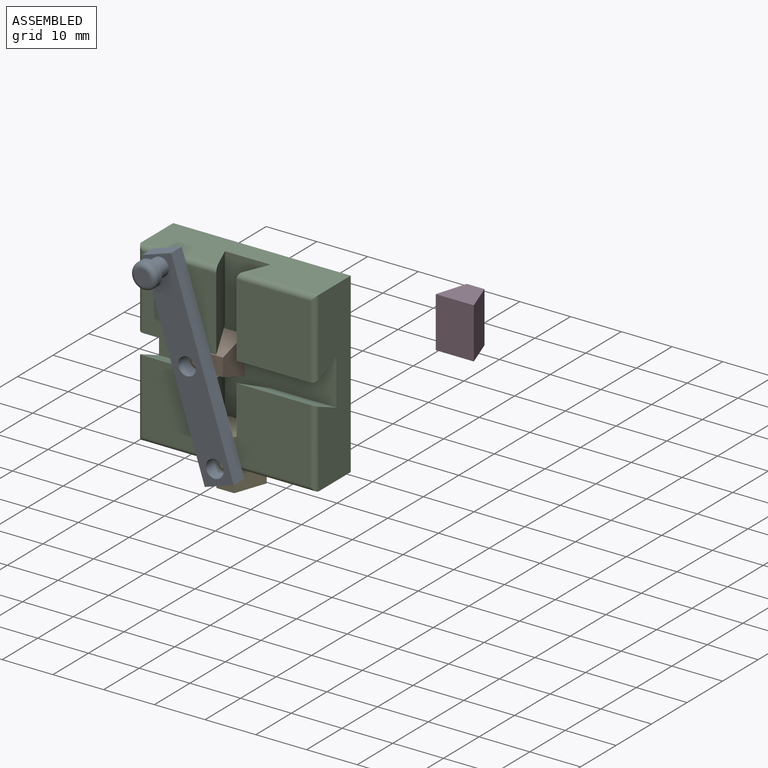
[diagram: assembled view]
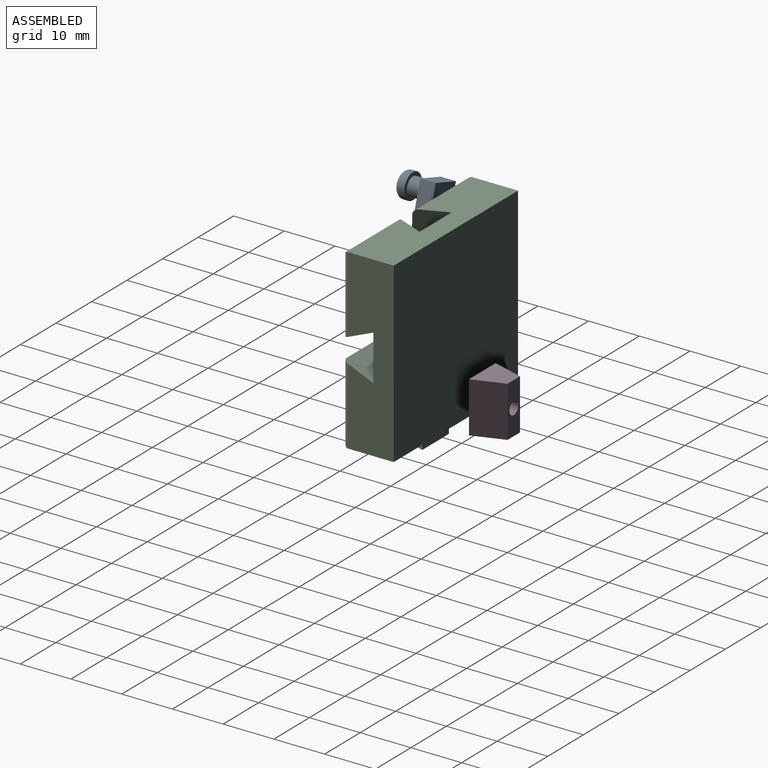
[diagram: assembled view, second angle]
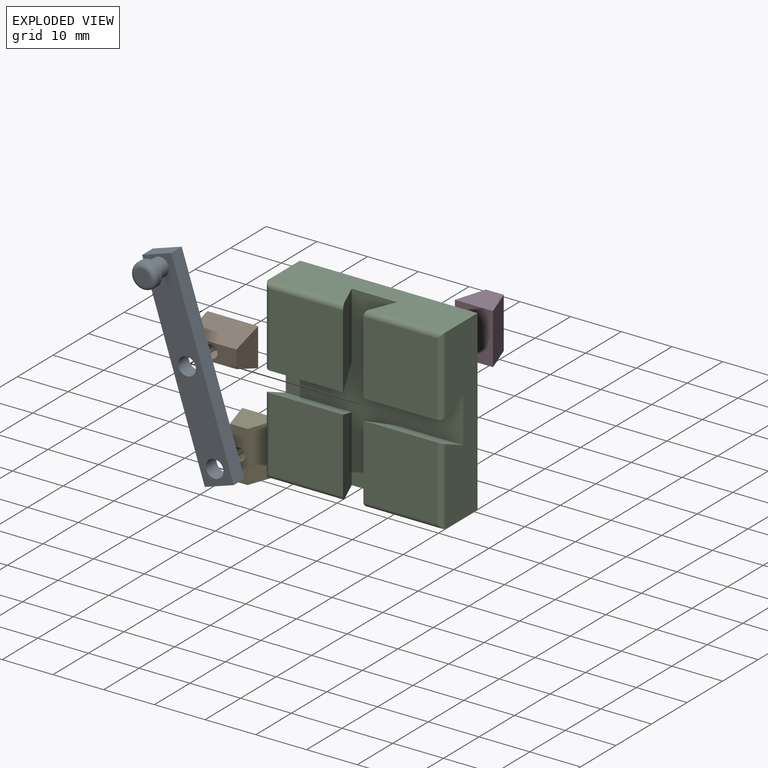
[diagram: exploded view]
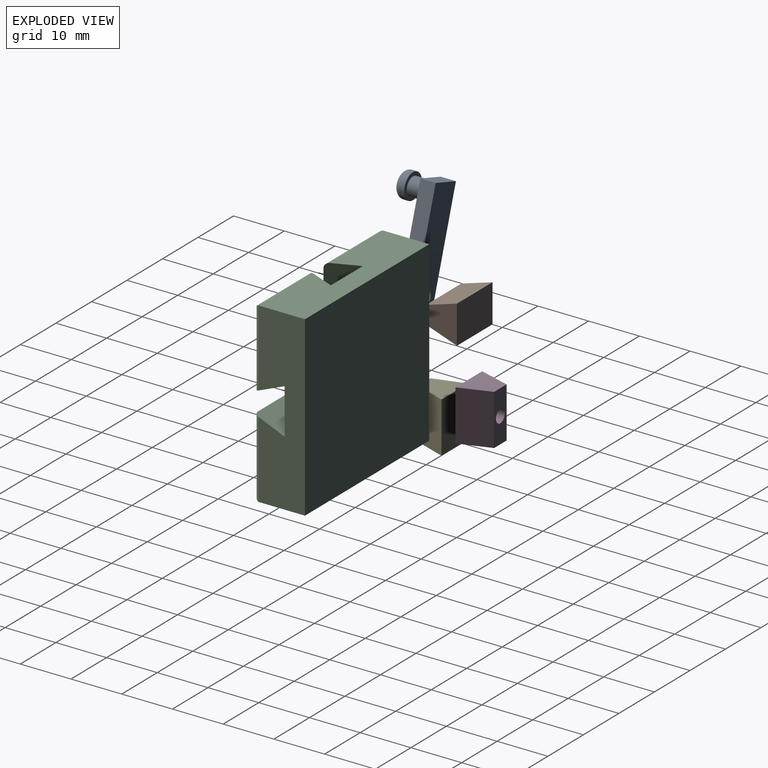
[diagram: exploded view, second angle]
ASSEMBLY  parts=5 mates=4
PART A: 13 faces, bbox 6x40.5x8 mm
  f0: plane 6x3mm, normal (0,-1,0), area 18mm2, adj f1,f5,f6,f7
  f1: plane 40x3mm, normal (1,0,0), area 120mm2, adj f0,f2,f6,f7
  f2: plane 6x3mm, normal (0,1,0), area 18mm2, adj f1,f5,f6,f7
  f3: cylinder r=1.75mm len=3.5mm, axis (0,0,-1), area 33mm2, adj f6,f7
  f4: cylinder r=1.75mm len=3.5mm, axis (0,0,-1), area 33mm2, adj f6,f7
  f5: plane 40x3mm, normal (-1,0,0), area 120mm2, adj f0,f2,f6,f7
  f6: plane 40x6mm, normal (0,0,1), area 211.1mm2, adj f0,f1,f2,f3,f4,f5,f8
  f7: plane 40x6mm, normal (0,0,-1), area 220.8mm2, adj f0,f1,f2,f3,f4,f5
  f8: cylinder r=1.76mm len=3.51mm, axis (0,0,-1), area 33.1mm2, adj f6,f11
  f9: cylinder r=2.5mm len=5mm, axis (0,0,-1), area 15.7mm2, adj f11,f12
  f10: plane 3x3mm, normal (0,0,1), area 7.1mm2, adj f12
  f11: plane 5x5mm, normal (0,0,-1), area 9.9mm2, adj f8,f9
  f12: torus R=1.5mm, axis (0,0,1), area 21.1mm2, adj f9,f10
PART B: 8 faces, bbox 7.5x6.1x10 mm
  f0: plane 10x6.1mm, normal (-0.96,0.29,0), area 63.7mm2, adj f1,f3,f4,f5
  f1: plane 10x7.5mm, normal (0,-1,0), area 75mm2, adj f0,f2,f4,f5
  f2: plane 10x6.1mm, normal (0.94,0.33,0), area 64.7mm2, adj f1,f3,f4,f5
  f3: plane 10x3.5mm, normal (0,1,0), area 30.1mm2, adj f0,f2,f4,f5,f6
  f4: plane 7.5x6.1mm, normal (0,0,1), area 33.6mm2, adj f0,f1,f2,f3
  f5: plane 7.5x6.1mm, normal (0,0,-1), area 33.6mm2, adj f0,f1,f2,f3
  f6: cylinder r=1.25mm len=3.18mm, axis (0,1,0), area 24.9mm2, adj f3,f7
  f7: plane 2.5x2.5mm, normal (0,1,0), area 4.9mm2, adj f6
PART C: 26 faces, bbox 35x10x35 mm
  f0: plane 14.5x14.5mm, normal (0,-1,0), area 210.3mm2, adj f4,f15,f18,f19
  f1: plane 14.5x14.5mm, normal (0,-1,0), area 210.3mm2, adj f3,f16,f20,f21
  f2: plane 35x9mm, normal (-1,0,0), area 280.4mm2, adj f6,f7,f10,f12,f16,f17,f21,f22
  f3: plane 15.5x6mm, normal (0.92,0.38,0), area 92.4mm2, adj f1,f7,f12,f16,f20
  f4: plane 15.5x6mm, normal (-0.92,0.38,0), area 92.4mm2, adj f0,f7,f12,f15,f18
  f5: plane 14.5x14.5mm, normal (0,-1,0), area 210.2mm2, adj f13,f14,f24,f25
  f6: plane 35x9mm, normal (0,0,-1), area 280.4mm2, adj f2,f8,f10,f11,f12,f13,f23,f24
  f7: plane 35x9mm, normal (0,0,1), area 280.4mm2, adj f2,f3,f4,f8,f10,f12,f18,f20
  f8: plane 35x9mm, normal (1,0,0), area 280.4mm2, adj f6,f7,f10,f12,f14,f15,f19,f25
  f9: plane 14.5x14.5mm, normal (0,-1,0), area 210.2mm2, adj f11,f17,f22,f23
  f10: plane 35x35mm, normal (0,1,0), area 1225mm2, adj f2,f6,f7,f8
  f11: plane 15.5x6mm, normal (0.92,0.38,0), area 92.4mm2, adj f6,f9,f12,f17,f23
  f12: plane 35x35mm, normal (0,-1,0), area 549mm2, adj f2,f3,f4,f6,f7,f8,f11,f13
  f13: plane 15.5x6mm, normal (-0.92,0.38,0), area 92.4mm2, adj f5,f6,f12,f14,f24
  f14: plane 15.5x6mm, normal (0,0.38,0.92), area 92.4mm2, adj f5,f8,f12,f13,f25
  f15: plane 15.5x6mm, normal (0,0.38,-0.92), area 92.4mm2, adj f0,f4,f8,f12,f19
  f16: plane 15.5x6mm, normal (0,0.38,-0.92), area 92.4mm2, adj f1,f2,f3,f12,f21
  f17: plane 15.5x6mm, normal (0,0.38,0.92), area 92.4mm2, adj f2,f9,f11,f12,f22
  f18: cylinder r=1mm len=15.5mm, axis (1,0,0), area 23.5mm2, adj f0,f4,f7,f19
  f19: cylinder r=1mm len=15.5mm, axis (0,0,-1), area 23.5mm2, adj f0,f8,f15,f18
  f20: cylinder r=1mm len=15.5mm, axis (1,0,0), area 23.5mm2, adj f1,f3,f7,f21
  f21: cylinder r=1mm len=15.5mm, axis (0,0,1), area 23.5mm2, adj f1,f2,f16,f20
  f22: cylinder r=1mm len=15.5mm, axis (0,0,1), area 23.5mm2, adj f2,f9,f17,f23
  f23: cylinder r=1mm len=15.5mm, axis (-1,0,0), area 23.5mm2, adj f6,f9,f11,f22
  f24: cylinder r=1mm len=15.5mm, axis (-1,0,0), area 23.5mm2, adj f5,f6,f13,f25
  f25: cylinder r=1mm len=15.5mm, axis (0,0,-1), area 23.5mm2, adj f5,f8,f14,f24
PART D: same geometry as B
PART E: same geometry as B
PLACE A rot(axis=(0.11,0.7,-0.7),167.3deg) t=(-30.42,-18.43,21.04)mm
PLACE B rot(axis=(0.71,0,-0.71),180deg) t=(-16.58,-12.33,-0.37)mm
PLACE C t=(1.53,-8.33,-14.12)mm fixed
PLACE D t=(10.83,13.03,-0.09)mm
PLACE E rot(axis=(1,0,0),180deg) t=(-12.22,-12.33,-8.28)mm
MATE revolute A.f4 <-> B.f6  axis (0,1,0) through (-21.58,-18.43,3.53)mm
MATE slider E.f5 <-> C.f6  axis (0,0,1) through (-15.97,-12.33,-8.28)mm
MATE revolute A.f3 <-> E.f6  axis (0,1,0) through (-16.12,-18.43,-13.28)mm
MATE slider B.f5 <-> C.f8  axis (1,0,0) through (-16.58,-12.33,3.38)mm
